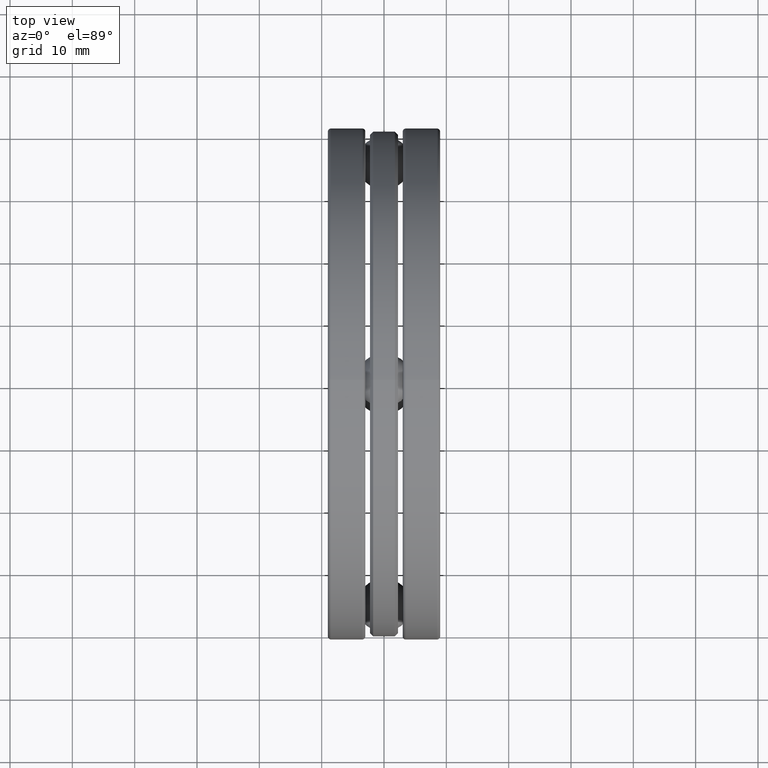
[diagram: clean part render]
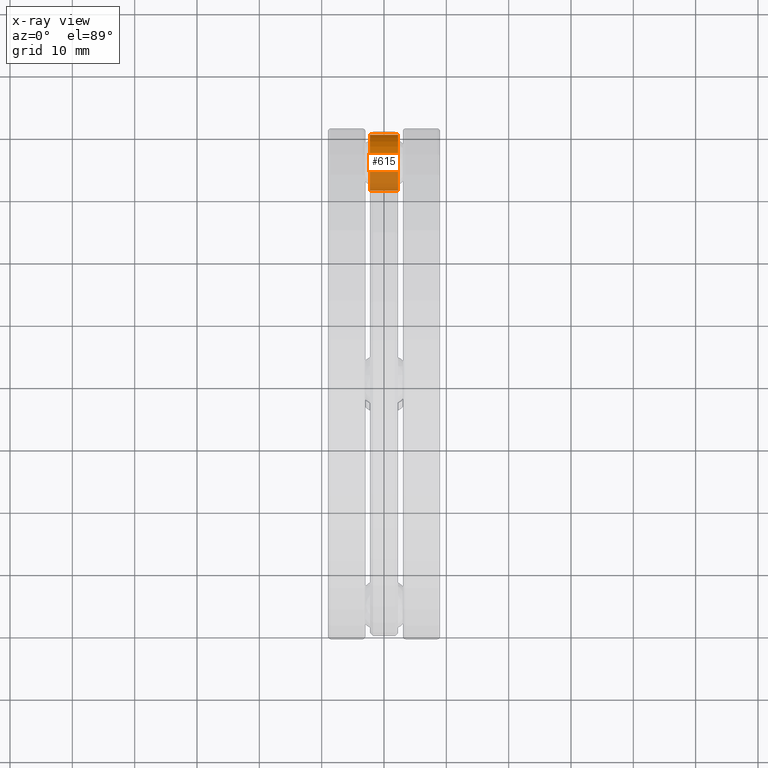
[diagram: x-ray — body ghosted, one internal face saturated and labeled with its STEP entity id]
A machine part, top view, then the same camera in x-ray: the body is ghosted and one INTERNAL B-rep face — a face not visible from any outside direction — is saturated and labeled: STEP entity #615.
In plain terms, the highlighted cylindrical surface (bore or boss wall) has radius 4.4831 mm, axis along (1, -0, -0).
Its self-contained STEP definition (entity closure, byte-faithful):
#29 = DIRECTION ( 'NONE',  ( -1.000000000000000000, -0.0000000000000000000, -0.0000000000000000000 ) ) ;
#100 = CARTESIAN_POINT ( 'NONE',  ( -0.08862499999999996800, 1.397500000000000000, 0.0000000000000000000 ) ) ;
#102 = DIRECTION ( 'NONE',  ( 1.000000000000000000, -0.0000000000000000000, 0.0000000000000000000 ) ) ;
#103 = ORIENTED_EDGE ( 'NONE', *, *, #384, .T. ) ;
#141 = AXIS2_PLACEMENT_3D ( 'NONE', #482, #102, #643 ) ;
#170 = AXIS2_PLACEMENT_3D ( 'NONE', #645, #280, #360 ) ;
#179 = CIRCLE ( 'NONE', #170, 0.1765000000000000200 ) ;
#192 = CIRCLE ( 'NONE', #745, 0.1765000000000000200 ) ;
#229 = DIRECTION ( 'NONE',  ( 0.0000000000000000000, 0.0000000000000000000, -1.000000000000000000 ) ) ;
#243 = ORIENTED_EDGE ( 'NONE', *, *, #792, .T. ) ;
#256 = CARTESIAN_POINT ( 'NONE',  ( -0.08862499999999999500, 1.573999999999999600, 0.0000000000000000000 ) ) ;
#268 = DIRECTION ( 'NONE',  ( 1.000000000000000000, -0.0000000000000000000, 0.0000000000000000000 ) ) ;
#280 = DIRECTION ( 'NONE',  ( -1.000000000000000000, -0.0000000000000000000, -0.0000000000000000000 ) ) ;
#292 = EDGE_CURVE ( 'NONE', #532, #966, #179, .T. ) ;
#302 = DIRECTION ( 'NONE',  ( 1.000000000000000000, -0.0000000000000000000, -0.0000000000000000000 ) ) ;
#340 = CYLINDRICAL_SURFACE ( 'NONE', #836, 0.1765000000000000200 ) ;
#360 = DIRECTION ( 'NONE',  ( 0.0000000000000000000, 0.0000000000000000000, -1.000000000000000000 ) ) ;
#384 = EDGE_CURVE ( 'NONE', #773, #882, #933, .T. ) ;
#406 = FACE_OUTER_BOUND ( 'NONE', #603, .T. ) ;
#419 = DIRECTION ( 'NONE',  ( 0.0000000000000000000, 0.0000000000000000000, -1.000000000000000000 ) ) ;
#482 = CARTESIAN_POINT ( 'NONE',  ( 0.08862500000000003700, 1.397500000000000000, 0.0000000000000000000 ) ) ;
#509 = CARTESIAN_POINT ( 'NONE',  ( 0.08862500000000003700, 1.397500000000000000, 0.0000000000000000000 ) ) ;
#519 = ORIENTED_EDGE ( 'NONE', *, *, #292, .T. ) ;
#532 = VERTEX_POINT ( 'NONE', #675 ) ;
#593 = FACE_OUTER_BOUND ( 'NONE', #874, .T. ) ;
#603 = EDGE_LOOP ( 'NONE', ( #519, #695 ) ) ;
#615 = ADVANCED_FACE ( 'NONE', ( #593, #406 ), #340, .F. ) ;
#639 = CARTESIAN_POINT ( 'NONE',  ( 0.08862500000000003700, 1.574000000000000300, 0.0000000000000000000 ) ) ;
#643 = DIRECTION ( 'NONE',  ( 0.0000000000000000000, 0.0000000000000000000, -1.000000000000000000 ) ) ;
#645 = CARTESIAN_POINT ( 'NONE',  ( -0.08862499999999996800, 1.397500000000000000, 0.0000000000000000000 ) ) ;
#675 = CARTESIAN_POINT ( 'NONE',  ( -0.08862499999999996800, 1.221000000000000100, 0.0000000000000000000 ) ) ;
#695 = ORIENTED_EDGE ( 'NONE', *, *, #813, .T. ) ;
#698 = CARTESIAN_POINT ( 'NONE',  ( -0.3545393700787400900, 1.397500000000000000, 0.0000000000000000000 ) ) ;
#712 = AXIS2_PLACEMENT_3D ( 'NONE', #509, #268, #900 ) ;
#745 = AXIS2_PLACEMENT_3D ( 'NONE', #100, #29, #419 ) ;
#773 = VERTEX_POINT ( 'NONE', #1018 ) ;
#776 = CIRCLE ( 'NONE', #141, 0.1765000000000000200 ) ;
#792 = EDGE_CURVE ( 'NONE', #882, #773, #776, .T. ) ;
#813 = EDGE_CURVE ( 'NONE', #966, #532, #192, .T. ) ;
#836 = AXIS2_PLACEMENT_3D ( 'NONE', #698, #302, #229 ) ;
#874 = EDGE_LOOP ( 'NONE', ( #243, #103 ) ) ;
#882 = VERTEX_POINT ( 'NONE', #639 ) ;
#900 = DIRECTION ( 'NONE',  ( 0.0000000000000000000, 0.0000000000000000000, -1.000000000000000000 ) ) ;
#933 = CIRCLE ( 'NONE', #712, 0.1765000000000000200 ) ;
#966 = VERTEX_POINT ( 'NONE', #256 ) ;
#1018 = CARTESIAN_POINT ( 'NONE',  ( 0.08862500000000005100, 1.221000000000000100, 0.0000000000000000000 ) ) ;